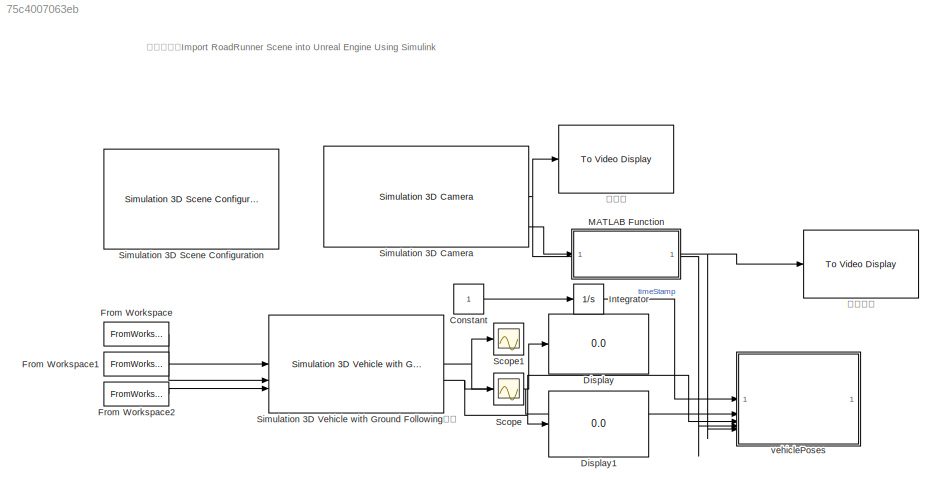
MODEL slx_75c4007063eb
KIND model
CONFIG AbsTol = auto
CONFIG EnableMultiTasking = off
CONFIG FixedStep = auto
CONFIG MaxStep = auto
CONFIG MinStep = auto
CONFIG RelTol = 1e-3
CONFIG SampleTimeConstraint = Unconstrained
CONFIG SolverName = VariableStepAuto
CONFIG StartTime = 0.0
CONFIG StopTime = 14.0333
BLOCK [Constant] Constant
BLOCK [Display] Display
  Decimation = 1
BLOCK [Display] Display1
  Decimation = 1
BLOCK [FromWorkspace] From Workspace
  VariableName = posX
BLOCK [FromWorkspace] From Workspace1
  VariableName = posY
BLOCK [FromWorkspace] From Workspace2
  VariableName = posYaw
BLOCK [Integrator] Integrator
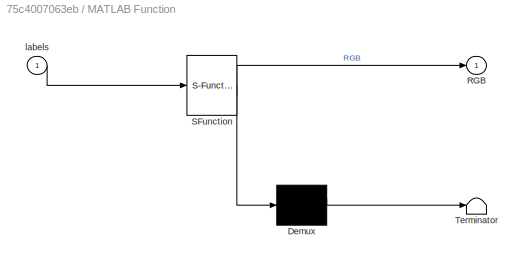
BLOCK [SubSystem] MATLAB Function
  ErrorFcn = Stateflow.Translate.translate
  PermitHierarchicalResolution = ExplicitOnly
  SFBlockType = MATLAB Function
  TreatAsAtomicUnit = on
BLOCK [Demux] MATLAB Function/ Demux 
  Outputs = 1
BLOCK [S-Function] MATLAB Function/ SFunction 
  EnableBusSupport = on
  FunctionName = sf_sfun
  PortCounts = [1 2]
  SFcnIsStateOwnerBlock = off
  SFunctionDeploymentMode = off
  Tag = Stateflow S-Function 2
BLOCK [Terminator] MATLAB Function/ Terminator 
BLOCK [Outport] MATLAB Function/RGB
BLOCK [Inport] MATLAB Function/labels
BLOCK [Scope] Scope
  Floating = off
  NumInputPorts = 1
  ScopeSpecificationString = Simulink.scopes.TimeScopeBlockCfg('CurrentConfiguration', extmgr.ConfigurationSet(extmgr.Configuration('Core','General UI',true),extmgr.Configuration('Core','Source UI',true),extmgr.Configuration('Sources','WiredSimulink',true),extmgr.Configuration('Visuals','Time Domain',true,'SerializedDisplays',{struct('MinYLimReal','-0.07974','MaxYLimReal','0.00886','YLabelReal','','MinYLimMag','0.00000','MaxY...<+1590ch>
BLOCK [Scope] Scope1
  Floating = off
  NumInputPorts = 1
  ScopeSpecificationString = Simulink.scopes.TimeScopeBlockCfg('CurrentConfiguration', extmgr.ConfigurationSet(extmgr.Configuration('Core','General UI',true),extmgr.Configuration('Core','Source UI',true),extmgr.Configuration('Sources','WiredSimulink',true,'DataLoggingVariableName','ScopeData1'),extmgr.Configuration('Visuals','Time Domain',true,'SerializedDisplays',{struct('MinYLimReal','-24.955','MaxYLimReal','14.595','YLabel...<+1623ch>
BLOCK [Reference] Simulation 3D Camera  REF=sim3dcameralib/Simulation 3D Camera
  LibrarySourceBlock = drivingsim3d/Simulation 3D Camera
  Priority = 1
  SourceBlock = sim3dcameralib/Simulation 3D Camera
  SourceType = Simulation 3D Camera
BLOCK [Reference] Simulation 3D Scene Configuration  REF=sim3dlib/Simulation 3D Scene Configuration
  LibrarySourceBlock = drivingsim3d/Simulation 3D Scene Configuration
  Priority = 0
  SourceBlock = sim3dlib/Simulation 3D Scene Configuration
  SourceType = Simulation 3D Scene Configuration
BLOCK [Reference] Simulation 3D Vehicle with Ground Following自车  REF=sim3dautolib/Simulation 3D Vehicle with Ground Following
  LibrarySourceBlock = drivingsim3d/Simulation 3D Vehicle with Ground Following
  Priority = -1
  SourceBlock = sim3dautolib/Simulation 3D Vehicle with Ground Following
  SourceType = Simulation 3D Vehicle with Ground Following
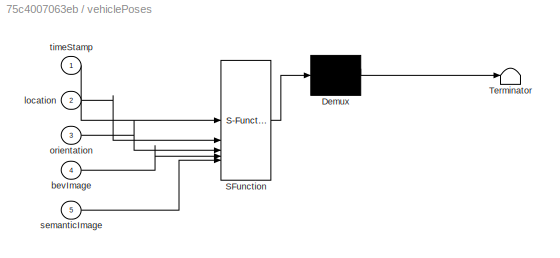
BLOCK [SubSystem] vehiclePoses
  ErrorFcn = Stateflow.Translate.translate
  PermitHierarchicalResolution = ExplicitOnly
  SFBlockType = MATLAB Function
  TreatAsAtomicUnit = on
BLOCK [Demux] vehiclePoses/ Demux 
  Outputs = 1
BLOCK [S-Function] vehiclePoses/ SFunction 
  EnableBusSupport = on
  FunctionName = sf_sfun
  PortCounts = [5 1]
  SFcnIsStateOwnerBlock = off
  SFunctionDeploymentMode = off
  Tag = Stateflow S-Function 3
BLOCK [Terminator] vehiclePoses/ Terminator 
BLOCK [Inport] vehiclePoses/bevImage
  Port = 4
BLOCK [Inport] vehiclePoses/location
  Port = 2
BLOCK [Inport] vehiclePoses/orientation
  Port = 3
BLOCK [Inport] vehiclePoses/semanticImage
  Port = 5
BLOCK [Inport] vehiclePoses/timeStamp
BLOCK [Reference] 原图像  REF=visionsinks/To Video Display
  SourceBlock = visionsinks/To Video Display
  SourceType = To Video Display
BLOCK [Reference] 语义图像  REF=visionsinks/To Video Display
  SourceBlock = visionsinks/To Video Display
  SourceType = To Video Display
ANNOTATION (root): 参考案例 ： Import RoadRunner Scene into Unreal Engine Using Simulink
LINE Constant:1 -> Integrator:1
LINE From Workspace1:1 -> Simulation 3D Vehicle with Ground Following自车:2
LINE From Workspace2:1 -> Simulation 3D Vehicle with Ground Following自车:3
LINE From Workspace:1 -> Simulation 3D Vehicle with Ground Following自车:1
LINE Integrator:1 -> vehiclePoses:1
NET MATLAB Function:1 -> vehiclePoses:5, 语义图像:1
NET Simulation 3D Camera:1 -> vehiclePoses:4, 原图像:1
LINE Simulation 3D Camera:4 -> MATLAB Function:1
NET Simulation 3D Vehicle with Ground Following自车:1 -> Display:1, Scope1:1, vehiclePoses:2
NET Simulation 3D Vehicle with Ground Following自车:2 -> Display1:1, Scope:1, vehiclePoses:3
note: NET lines group one-source signal fan-out (src -> all destinations, sorted); 1:1 wires keep LINE
CHART MATLAB Function states=1 transitions=1
  STATE_LABEL 'eML_blk_kernel()'
  STATE_LABEL "SCRIPT:\nfunction RGB = sim3dlabel2rgb(labels)\n% Convert semantic segmentation map captured during 3D simulation to RGB\n% color image.\n\n% Declare label2rgb function.\ncoder.extrinsic('label2rgb');\n\n% Preallocate memory for RGB matrix.\nRGB = coder.nullcopy(zeros(size(labels,1),size(labels,2),3,class(labels)));\n\n% Define colormap using 3D simulation label IDs.\ncmap = sim3dColormap;\n\n% Convert labels t...<+54ch>"
CHART vehiclePoses states=1 transitions=1
  STATE_LABEL 'eML_blk_kernel()'
  STATE_LABEL 'SCRIPT:\nfunction logPosesAndImage(timeStamp,location, orientation,bevImage,semanticImage)\n% matlab function block使用，用于曾总Simulation 3D Camera 模块实时仿真输出存储，2024.1.26\ncoder.extrinsic("logSensorSubFcn");\nlogSensorSubFcn(timeStamp,location, orientation,bevImage,semanticImage);\nend\n'
CHART  states=0 transitions=0
CHART  states=0 transitions=0
